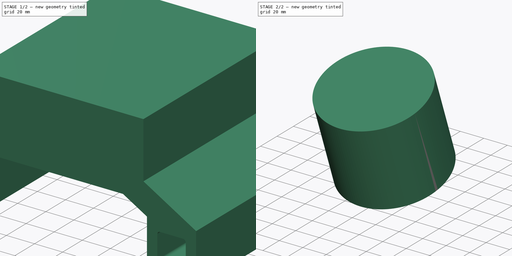
[diagram: build sequence overview — one tinted view per stage of 2, left to right]
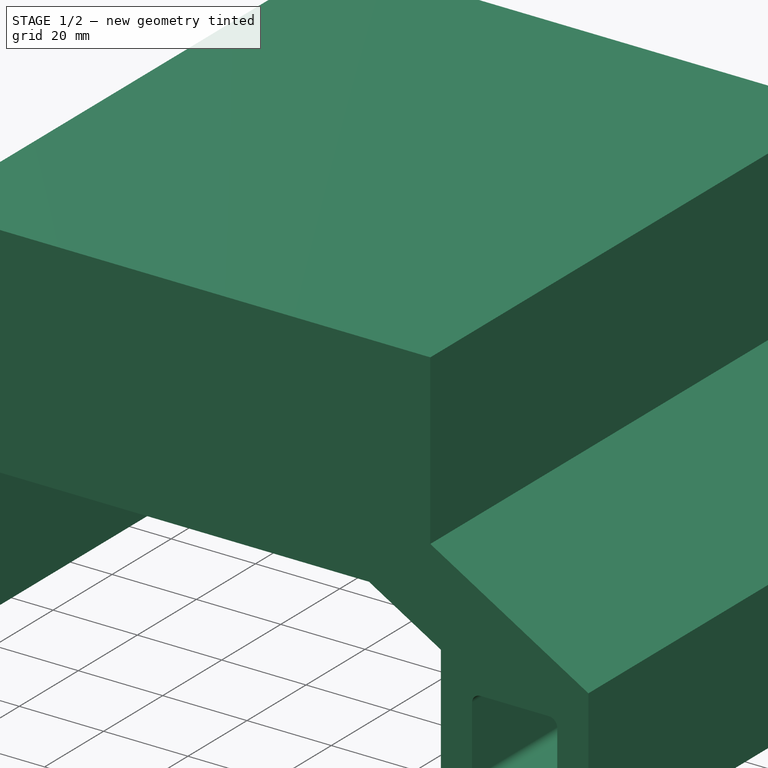
[diagram: stage 1 of 2 — iso view after this stage's code; geometry added in this stage tinted green]
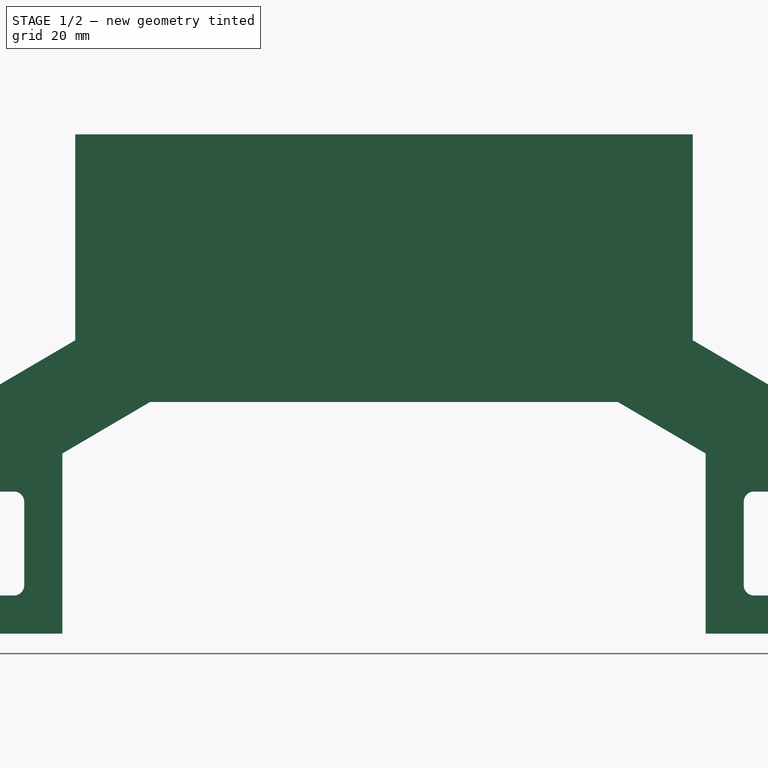
[diagram: stage 1 of 2 — front view after this stage's code; geometry added in this stage tinted green]
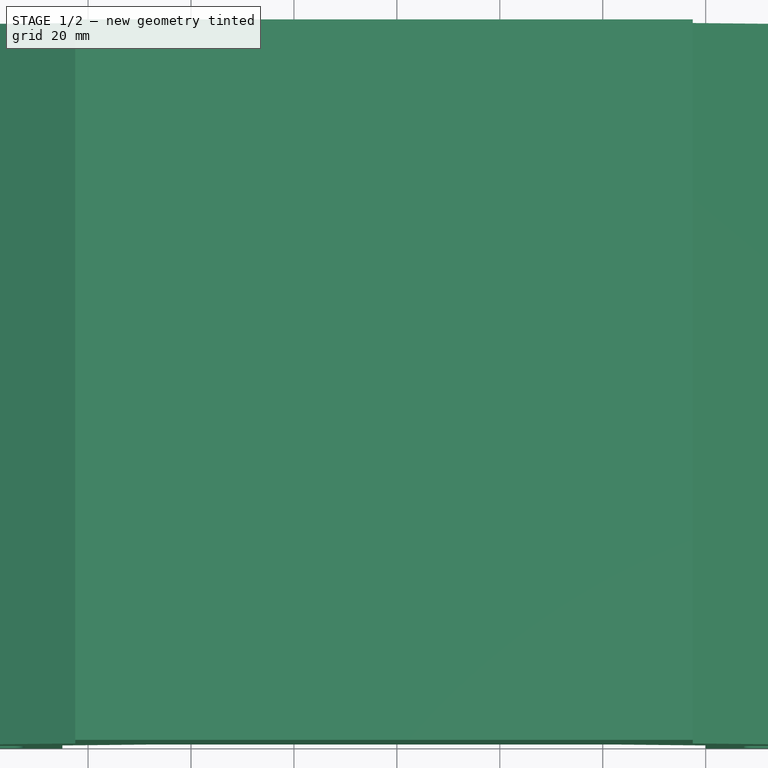
[diagram: stage 1 of 2 — top view after this stage's code; geometry added in this stage tinted green]
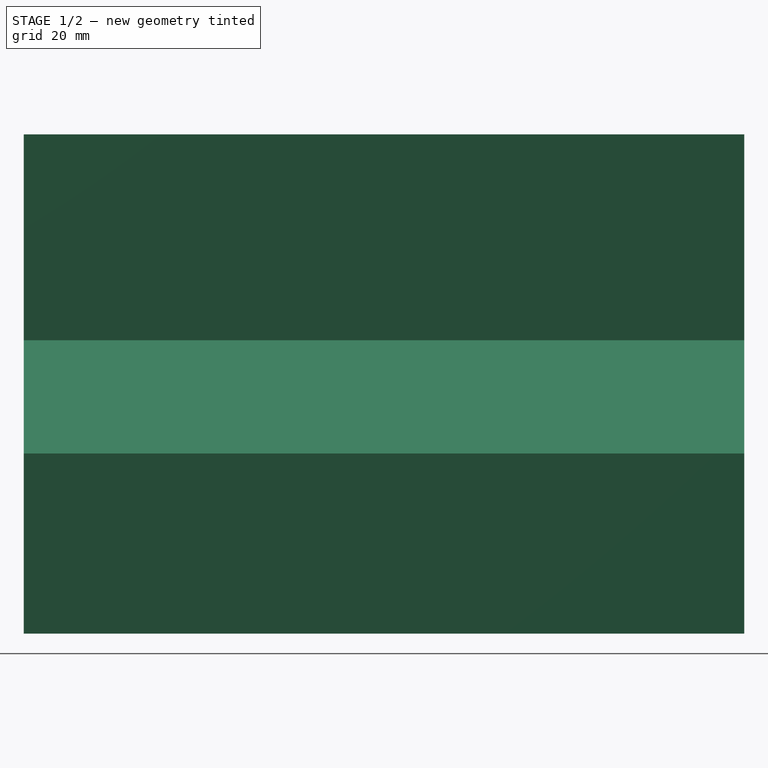
[diagram: stage 1 of 2 — right view after this stage's code; geometry added in this stage tinted green]
FCSTD DOCUMENT  (FreeCAD 0.19R24276 (Git))
Label: spot_lidar_mnt_v6
License: All rights reserved
LicenseURL: http://en.wikipedia.org/wiki/All_rights_reserved
objects: Part::Feature×5, Sketcher::SketchObject×4, PartDesign::Pad×3, PartDesign::Body×2, PartDesign::Pocket×1, PartDesign::ShapeBinder×1, App::Part×1
note: 20 computed .brp shape members not serialized (recipe doc carries the construction recipe); baked Part::Feature solids carry a one-line shape summary decoded from their .brp

FEATURE [Sketcher::SketchObject] Sketch
  FullyConstrained = false
  MapMode = 5
  Placement = pos=(0,0,0) rot=(1,0,0;1.5708rad)
  Support = -> [XZ_Plane]
  sketch-geometry (39):
    g0: LineSegment StartX=0 StartY=0 StartZ=0 EndX=37.5 EndY=22 EndZ=0
    g1: LineSegment StartX=195 StartY=0 StartZ=0 EndX=157.5 EndY=22 EndZ=0
    g2: LineSegment StartX=37.5 StartY=22 StartZ=0 EndX=157.5 EndY=22 EndZ=0
    g3: LineSegment StartX=0 StartY=0 StartZ=0 EndX=0 EndY=-35 EndZ=0
    g4: LineSegment StartX=0 StartY=-35 StartZ=0 EndX=35 EndY=-35 EndZ=0
    g5: LineSegment StartX=35 StartY=-35 StartZ=0 EndX=35 EndY=0 EndZ=0
    g6: LineSegment StartX=35 StartY=0 StartZ=0 EndX=52.0455 EndY=10 EndZ=0
    g7: LineSegment StartX=52.0455 StartY=10 StartZ=0 EndX=142.955 EndY=10 EndZ=0
    g8: LineSegment StartX=142.955 StartY=10 StartZ=0 EndX=160 EndY=0 EndZ=0
    g9: LineSegment StartX=160 StartY=0 StartZ=0 EndX=160 EndY=-35 EndZ=0
    g10: LineSegment StartX=160 StartY=-35 StartZ=0 EndX=195 EndY=-35 EndZ=0
    g11: LineSegment StartX=195 StartY=-35 StartZ=0 EndX=195 EndY=0 EndZ=0
    g12: GeomPoint X=97.5 Y=10 Z=0
    g13: LineSegment StartX=7.40001 StartY=-9.4 StartZ=0 EndX=7.40001 EndY=-25.6 EndZ=0
    g14: LineSegment StartX=9.4 StartY=-27.6 StartZ=0 EndX=25.6 EndY=-27.6 EndZ=0
    g15: LineSegment StartX=27.6 StartY=-9.4 StartZ=0 EndX=27.6 EndY=-25.6 EndZ=0
    g16: LineSegment StartX=9.4 StartY=-7.4 StartZ=0 EndX=25.6 EndY=-7.4 EndZ=0
    g17: ArcOfCircle CenterX=9.40001 CenterY=-9.4 CenterZ=0 NormalX=0 NormalY=0 NormalZ=1 AngleXU=0 Radius=2 StartAngle=1.5708 EndAngle=3.14159
    g18: ArcOfCircle CenterX=25.6 CenterY=-9.4 CenterZ=0 NormalX=0 NormalY=0 NormalZ=1 AngleXU=0 Radius=2 StartAngle=0 EndAngle=1.5708
    g19: ArcOfCircle CenterX=9.40001 CenterY=-25.6 CenterZ=0 NormalX=0 NormalY=0 NormalZ=1 AngleXU=0 Radius=2 StartAngle=3.14159 EndAngle=4.71238
    g20: ArcOfCircle CenterX=25.6 CenterY=-25.6 CenterZ=0 NormalX=0 NormalY=0 NormalZ=1 AngleXU=0 Radius=2 StartAngle=4.71239 EndAngle=6.28319
    g21: LineSegment StartX=0 StartY=-17.5 StartZ=0 EndX=35 EndY=-17.5 EndZ=0
    g22: LineSegment StartX=17.5 StartY=0 StartZ=0 EndX=17.5 EndY=-35 EndZ=0
    g23: GeomPoint X=27.6 Y=-17.5 Z=0
    g24: GeomPoint X=7.40001 Y=-17.5 Z=0
    g25: GeomPoint X=17.5 Y=-7.4 Z=0
    g26: LineSegment StartX=169.4 StartY=-7.4 StartZ=0 EndX=185.6 EndY=-7.4 EndZ=0
    g27: LineSegment StartX=187.6 StartY=-9.4 StartZ=0 EndX=187.6 EndY=-25.6 EndZ=0
    g28: LineSegment StartX=185.6 StartY=-27.6 StartZ=0 EndX=169.4 EndY=-27.6 EndZ=0
    g29: LineSegment StartX=167.4 StartY=-25.6 StartZ=0 EndX=167.4 EndY=-9.4 EndZ=0
    g30: ArcOfCircle CenterX=169.4 CenterY=-9.4 CenterZ=0 NormalX=0 NormalY=0 NormalZ=1 AngleXU=0 Radius=2 StartAngle=1.5708 EndAngle=3.14159
    g31: ArcOfCircle CenterX=185.6 CenterY=-9.4 CenterZ=0 NormalX=0 NormalY=0 NormalZ=1 AngleXU=0 Radius=2 StartAngle=1e-16 EndAngle=1.5708
    g32: ArcOfCircle CenterX=185.6 CenterY=-25.6 CenterZ=0 NormalX=0 NormalY=0 NormalZ=1 AngleXU=0 Radius=2 StartAngle=4.71239 EndAngle=6.28319
    g33: ArcOfCircle CenterX=169.4 CenterY=-25.6 CenterZ=0 NormalX=0 NormalY=0 NormalZ=1 AngleXU=0 Radius=2 StartAngle=3.14159 EndAngle=4.71239
    g34: LineSegment StartX=160 StartY=-17.5 StartZ=0 EndX=195 EndY=-17.5 EndZ=0
    g35: LineSegment StartX=177.5 StartY=0 StartZ=0 EndX=177.5 EndY=-35 EndZ=0
    g36: GeomPoint X=167.4 Y=-17.5 Z=0
    g37: GeomPoint X=177.5 Y=-27.6 Z=0
    g38: LineSegment StartX=97.5 StartY=87.4445 StartZ=0 EndX=97.5 EndY=-35 EndZ=0
  constraints (102):
    c: Coincident(g0,g-1)
    c: PointOnObject(g1,g-1)
    c: Horizontal(g1,g0)
    c: Coincident(g2,g0)
    c: Coincident(g2,g1)
    c: Coincident(g3,g0)
    c: Vertical(g3)
    c: Coincident(g4,g3)
    c: Horizontal(g4)
    c: Coincident(g5,g4)
    c: PointOnObject(g5,g-1)
    c: Vertical(g5)
    c: Coincident(g6,g5)
    c: Coincident(g7,g6)
    c: Horizontal(g7)
    c: Coincident(g8,g7)
    c: PointOnObject(g8,g-1)
    c: Coincident(g9,g8)
    c: Vertical(g9)
    c: Coincident(g10,g9)
    c: Horizontal(g10)
    c: Coincident(g11,g10)
    c: Coincident(g11,g1)
    c: Vertical(g11)
    c: DistanceX(g4,g4) = 35
    c: DistanceX(g10,g10) = 35
    c: DistanceY(g9,g9) = 35
    c: Horizontal(g4,g9)
    c: Symmetric(g6,g7,g12)
    c: Parallel(g6,g0)
    c: Parallel(g8,g1)
    c: DistanceY(g-1,g6) = 10
    c: Vertical(g13)
    c: Horizontal(g14)
    c: Vertical(g15)
    c: Horizontal(g16)
    c: Coincident(g17,g13)
    c: Coincident(g17,g16)
    c: Radius(g17) = 2
    c: Vertical(g14,g16)
    c: Vertical(g14,g16)
    c: Horizontal(g13,g15)
    c: Horizontal(g13,g15)
    c: Coincident(g18,g16)
    c: Coincident(g18,g15)
    c: DistanceX(g16,g16) = 16.2
    c: DistanceY(g13,g13) = 16.2
    c: Coincident(g19,g13)
    c: Coincident(g19,g14)
    c: Coincident(g20,g14)
    c: Coincident(g20,g15)
    c: Equal(g18,g17)
    c: Equal(g17,g19)
    c: Equal(g17,g20)
    c: Vertical(g18,g16)
    c: Horizontal(g15,g18)
    c: PointOnObject(g21,g3)
    c: Horizontal(g21)
    c: PointOnObject(g22,g4)
    c: Vertical(g22)
    c: Symmetric(g0,g5,g22)
    c: Symmetric(g5,g4,g21)
    c: Symmetric(g13,g13,g24)
    c: PointOnObject(g24,g21)
    c: Symmetric(g15,g15,g23)
    c: Symmetric(g16,g16,g25)
    c: PointOnObject(g25,g22)
    c: Horizontal(g26)
    c: Horizontal(g28)
    c: Vertical(g27)
    c: Vertical(g29)
    c: Tangent(g26,g30) = 1.5708
    c: Tangent(g29,g30) = 1.5708
    c: Radius(g30) = 2
    c: Tangent(g26,g31) = 1.5708
    c: Tangent(g27,g31) = 1.5708
    c: Tangent(g28,g32) = 1.5708
    c: Tangent(g27,g32) = 1.5708
    c: Tangent(g29,g33) = 1.5708
    c: Tangent(g28,g33) = 1.5708
    c: Equal(g30,g33)
    c: Equal(g32,g30)
    c: Equal(g31,g30)
    c: DistanceX(g26,g26) = 16.2
    c: DistanceY(g29,g29) = 16.2
    c: Horizontal(g34)
    c: Symmetric(g8,g1,g35)
    c: Symmetric(g9,g10,g35)
    c: Symmetric(g1,g10,g34)
    c: PointOnObject(g34,g9)
    c: Symmetric(g28,g28,g37)
    c: PointOnObject(g37,g35)
    c: Symmetric(g29,g29,g36)
    c: PointOnObject(g36,g34)
    c: DistanceX(g22,g35) = 160
    c: DistanceX(g2,g2) = 120
    c: Vertical(g38)
    c: PointOnObject(g12,g38)
    c: Symmetric(g22,g35,g38)
    c: DistanceY(g7,g1) = 12
    c: Horizontal(g19,g13)
    c: Horizontal(g15,g20)
FEATURE [Part::Feature] Solid002  label="320-101890-05-Mount"
  shape: bbox 110 x 20.5 x 110 mm, 265 faces (baked)
FEATURE [Part::Feature] Solid  label="840-102144-D-SensorAssemblyOS0"
  shape: bbox 87 x 73.5 x 88.2 mm, 1295 faces (baked)
FEATURE [Part::Feature] Solid001  label="840-102144-D-SensorAssemblyOS0_FlatCap"
  shape: bbox 87 x 58.35 x 88.16 mm, 946 faces (baked)
FEATURE [PartDesign::Pad] Pad
  Direction = (1,1,1)
  Length = 140
  Length2 = 100
  Placement = pos=(0,0,0) rot=(1,0,0;1.5708rad)
  Profile = -> Sketch
  Type = 0
FEATURE [Sketcher::SketchObject] Sketch001
  ExternalGeometry = -> [Pad]
  FullyConstrained = true
  MapMode = 5
  Placement = pos=(0,-4.9e-15,22) rot=(0,0,1;3.14159rad)
  Support = -> [Pad]
  sketch-geometry (4):
    g0: LineSegment StartX=-157.5 StartY=140 StartZ=0 EndX=-37.5 EndY=140 EndZ=0
    g1: LineSegment StartX=-37.5 StartY=140 StartZ=0 EndX=-37.5 EndY=0 EndZ=0
    g2: LineSegment StartX=-37.5 StartY=0 StartZ=0 EndX=-157.5 EndY=0 EndZ=0
    g3: LineSegment StartX=-157.5 StartY=0 StartZ=0 EndX=-157.5 EndY=140 EndZ=0
  constraints (10):
    c: Coincident(g0,g1)
    c: Coincident(g1,g2)
    c: Coincident(g2,g3)
    c: Coincident(g3,g0)
    c: Horizontal(g0)
    c: Horizontal(g2)
    c: Vertical(g1)
    c: Vertical(g3)
    c: Coincident(g0,g-3)
    c: Coincident(g1,g-4)
FEATURE [PartDesign::Pad] Pad001
  BaseFeature = -> Pad
  Direction = (1,1,1)
  Length = 40
  Length2 = 100
  Placement = pos=(0,0,0) rot=(1,0,0;1.5708rad)
  Profile = -> Sketch001
  Type = 0
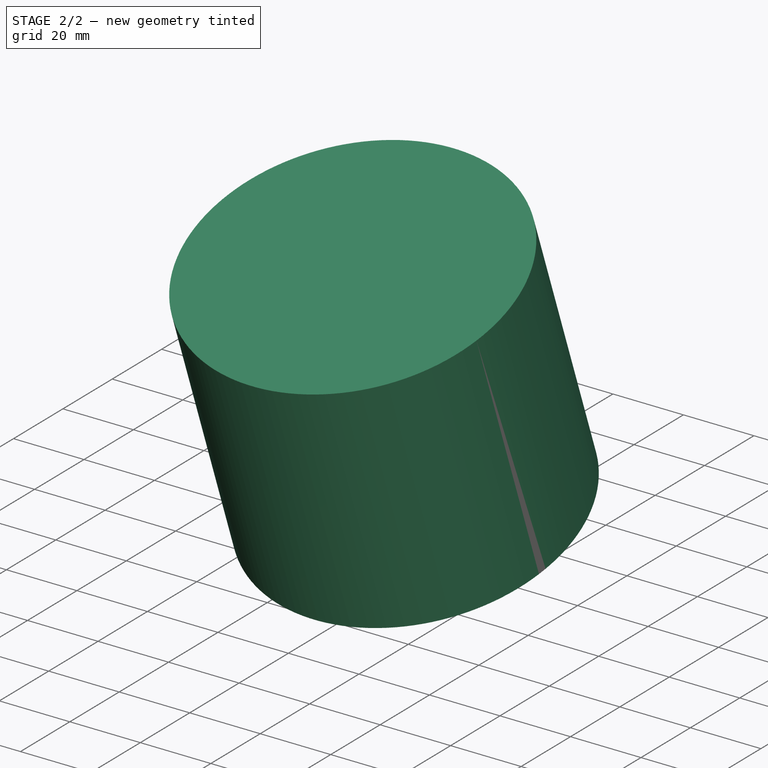
[diagram: stage 2 of 2 — iso view after this stage's code; geometry added in this stage tinted green]
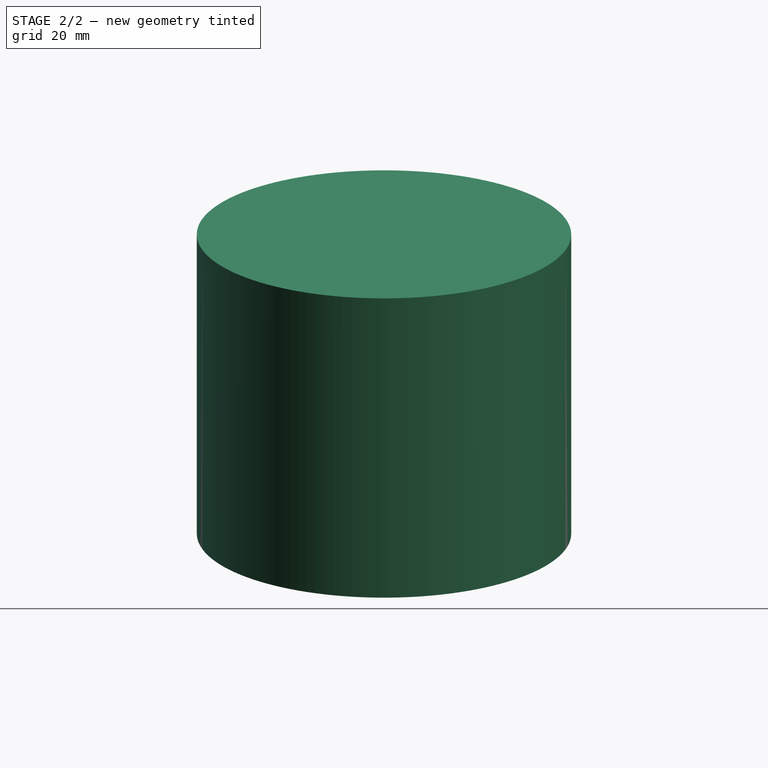
[diagram: stage 2 of 2 — front view after this stage's code; geometry added in this stage tinted green]
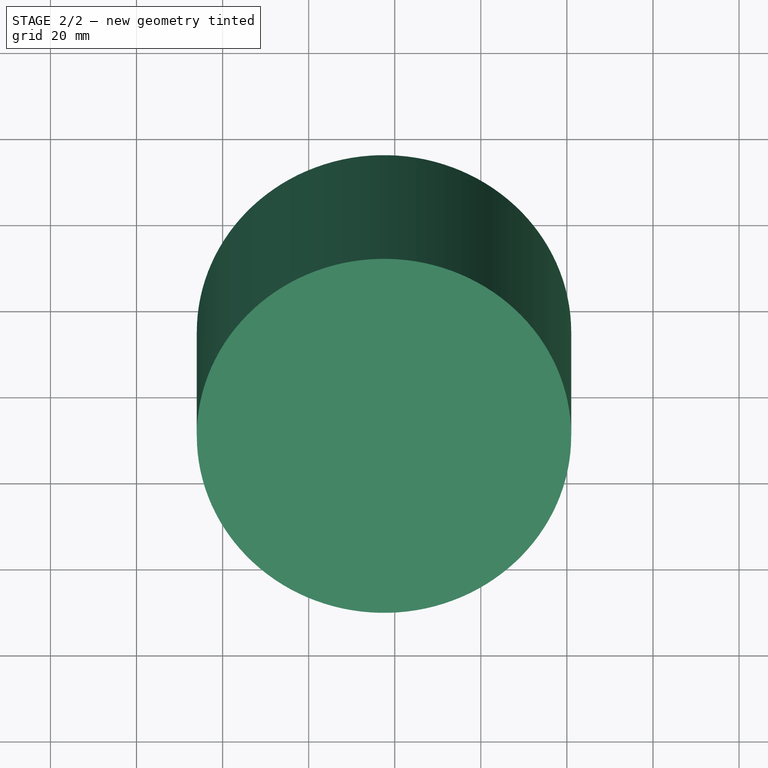
[diagram: stage 2 of 2 — top view after this stage's code; geometry added in this stage tinted green]
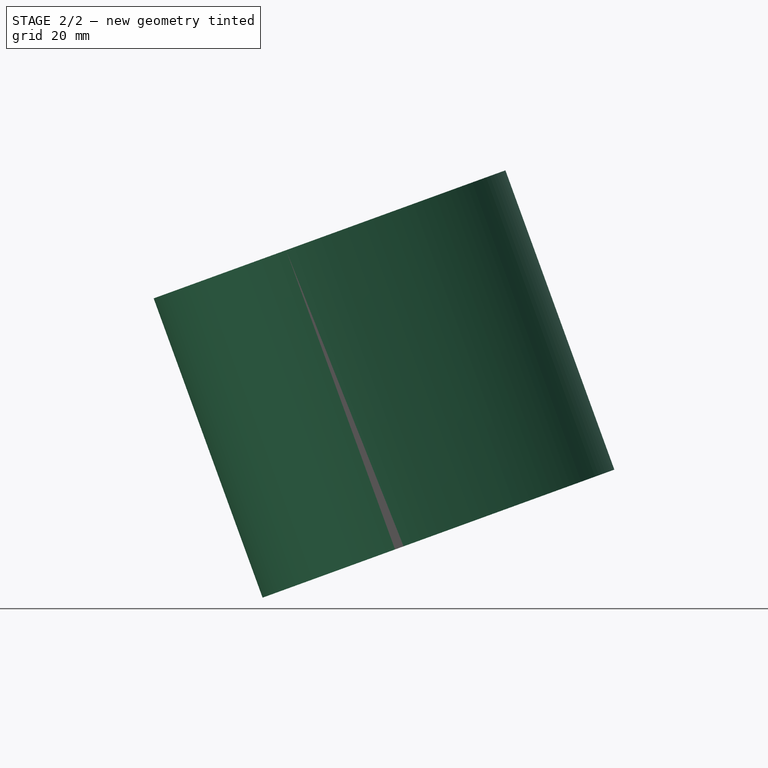
[diagram: stage 2 of 2 — right view after this stage's code; geometry added in this stage tinted green]
FEATURE [Sketcher::SketchObject] Sketch002
  ExternalGeometry = -> [Pad001]
  FullyConstrained = false
  MapMode = 5
  Placement = pos=(37.5,0,0) rot=(0.707107,0,-0.707107;3.14159rad)
  Support = -> [Pad001]
  sketch-geometry (6):
    g0: LineSegment StartX=-62 StartY=30.1009 StartZ=0 EndX=-22 EndY=140 EndZ=0
    g1: LineSegment StartX=-22 StartY=140 StartZ=0 EndX=-62 EndY=140 EndZ=0
    g2: LineSegment StartX=-62 StartY=140 StartZ=0 EndX=-62 EndY=30.1009 EndZ=0
    g3: LineSegment StartX=-22 StartY=0 StartZ=0 EndX=-62 EndY=0 EndZ=0
    g4: LineSegment StartX=-62 StartY=0 StartZ=0 EndX=-62 EndY=18.5313 EndZ=0
    g5: LineSegment StartX=-62 StartY=18.5313 StartZ=0 EndX=-22 EndY=0 EndZ=0
  constraints (13):
    c: PointOnObject(g0,g-3)
    c: Coincident(g1,g0)
    c: Coincident(g1,g-4)
    c: Coincident(g2,g1)
    c: Coincident(g2,g0)
    c: Coincident(g3,g-3)
    c: Angle(g0,g2) = 0.349066
    c: Coincident(g-5,g0)
    c: Coincident(g4,g3)
    c: PointOnObject(g4,g-3)
    c: Coincident(g5,g4)
    c: Coincident(g5,g3)
    c: Coincident(g-5,g3)
FEATURE [PartDesign::Pocket] Pocket
  BaseFeature = -> Pad001
  Length = 5
  Length2 = 100
  Placement = pos=(0,0,0) rot=(1,0,0;1.5708rad)
  Profile = -> Sketch002
  Type = 1
FEATURE [PartDesign::Body] Body  label="item_mnt_base"
  Group = -> [Sketch,Pad,Sketch001,Pad001,Sketch002,Pocket]
  Origin = -> Origin
  Tip = -> Pocket
FEATURE [PartDesign::ShapeBinder] ShapeBinder
  Placement = pos=(0,0,0) rot=(1,0,0;1.5708rad)
  Support = -> [Pocket]
  TraceSupport = false
FEATURE [Sketcher::SketchObject] Sketch003
  ExternalGeometry = -> [ShapeBinder]
  FullyConstrained = true
  MapMode = 5
  Placement = pos=(-1.43e-14,-23.4476,64.4216) rot=(0,-0.173648,0.984808;3.14159rad)
  Support = -> [ShapeBinder]
  sketch-geometry (1):
    g0: Circle CenterX=-97.5 CenterY=65.5564 CenterZ=0 NormalX=0 NormalY=0 NormalZ=1 AngleXU=0 Radius=43.5
  constraints (2):
    c: Symmetric(g-4,g-5,g0)
    c: Diameter(g0) = 87
FEATURE [PartDesign::Pad] Pad002
  Direction = (1,1,1)
  Length = 74
  Length2 = 100
  Placement = pos=(0,0,0) rot=(1,0,0;1.5708rad)
  Profile = -> Sketch003
  Type = 0
FEATURE [PartDesign::Body] Body001  label="dummy_lidar"
  Group = -> [ShapeBinder,Sketch003,Pad002]
  Origin = -> Origin001
  Tip = -> Pad002
FEATURE [Part::Feature] Part__Feature  label="defeature_840-102144-D-SensorAssemblyOS0"
  shape: bbox 87 x 73.5 x 88.2 mm, 1295 faces (baked)
FEATURE [Part::Feature] Part__Feature001  label="sensor_fov_OS0"
  shape: bbox 400 x 354 x 400 mm, 8 faces (baked)
FEATURE [App::Part] _40_102144_D_SensorAssemblyOS0_FOV  label="840-102144-D-SensorAssemblyOS0_FOV"
  Group = -> [Part__Feature,Part__Feature001]
  Origin = -> Origin002
  Placement = pos=(97,-85,42) rot=(1,0,0;1.91986rad)
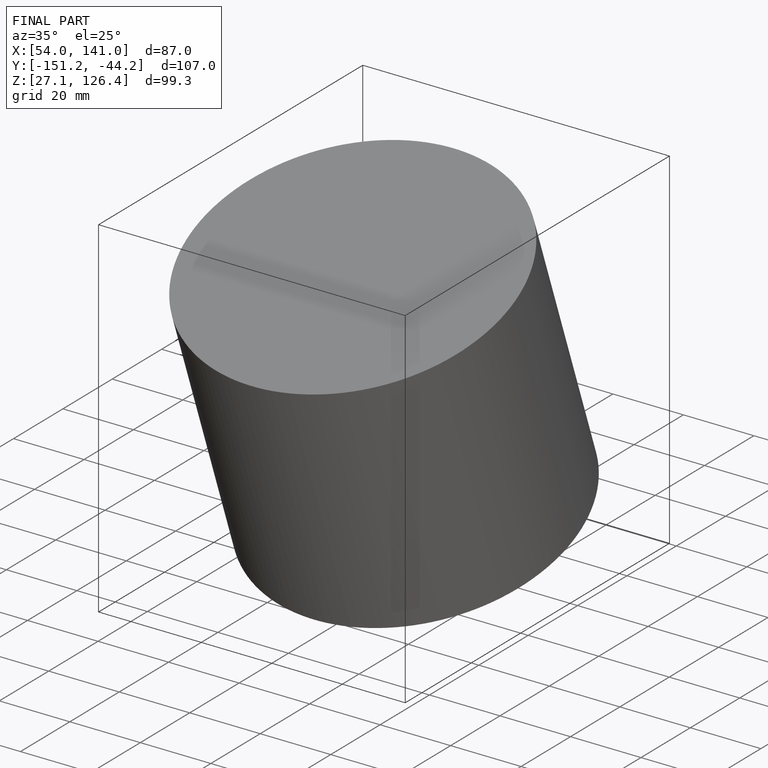
[diagram: finished part — iso view with bounding-box wireframe]
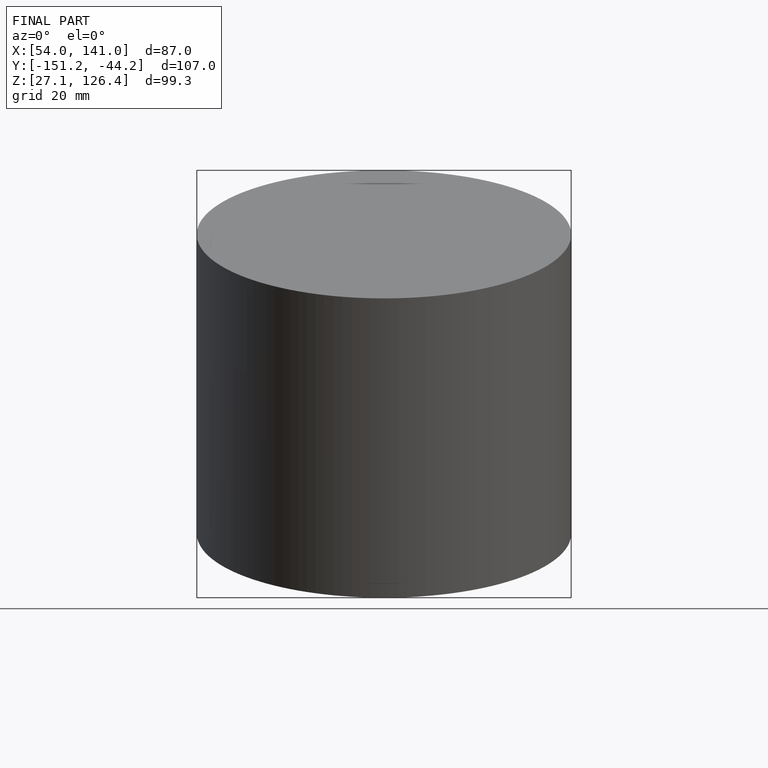
[diagram: finished part — front view with bounding-box wireframe]
